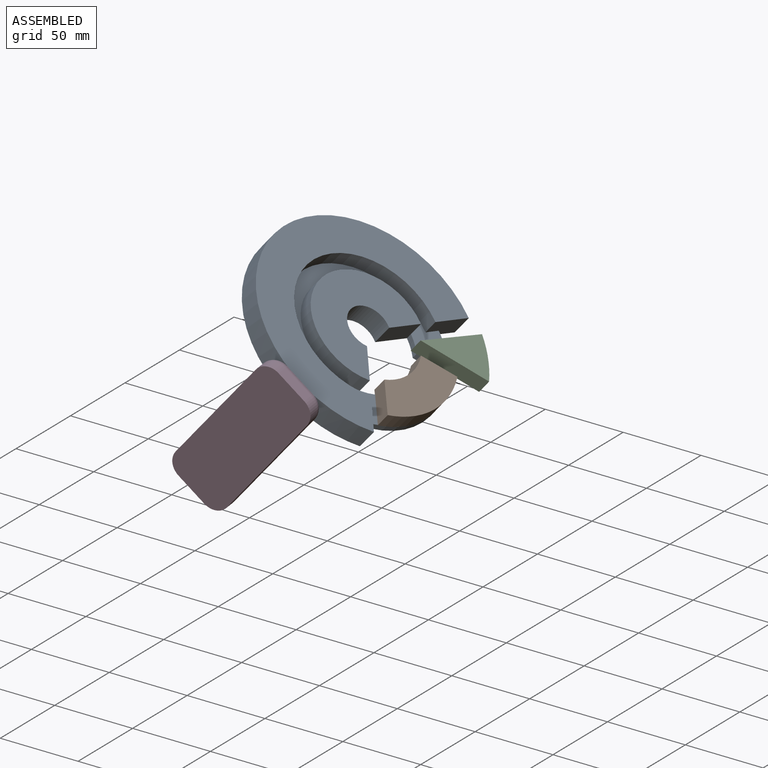
[diagram: assembled view]
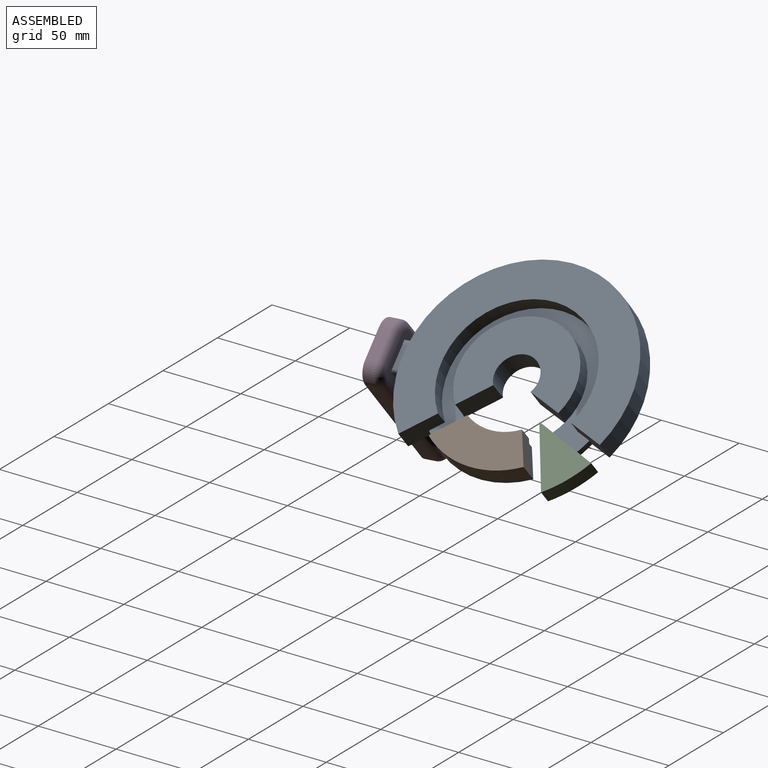
[diagram: assembled view, second angle]
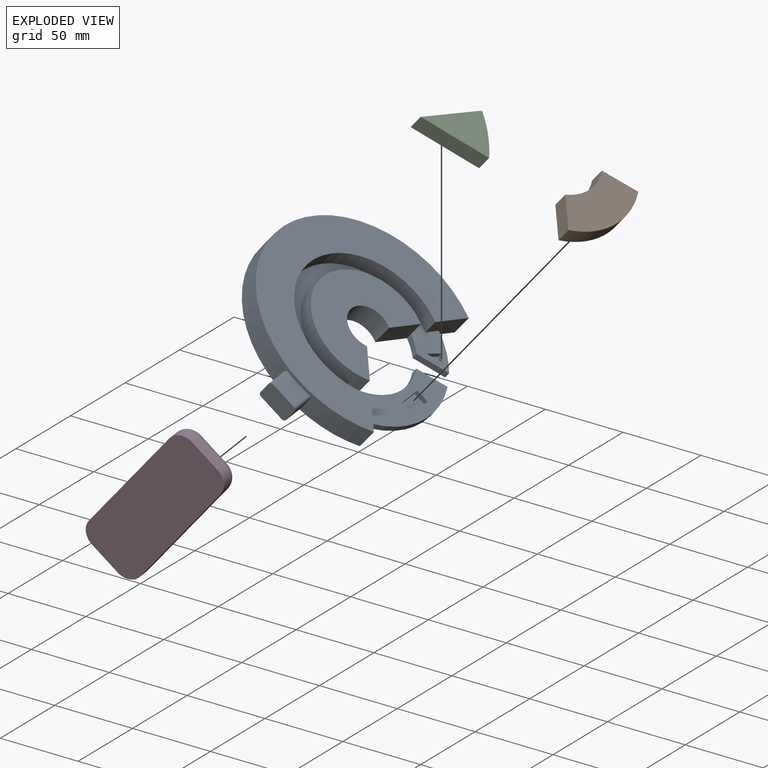
[diagram: exploded view]
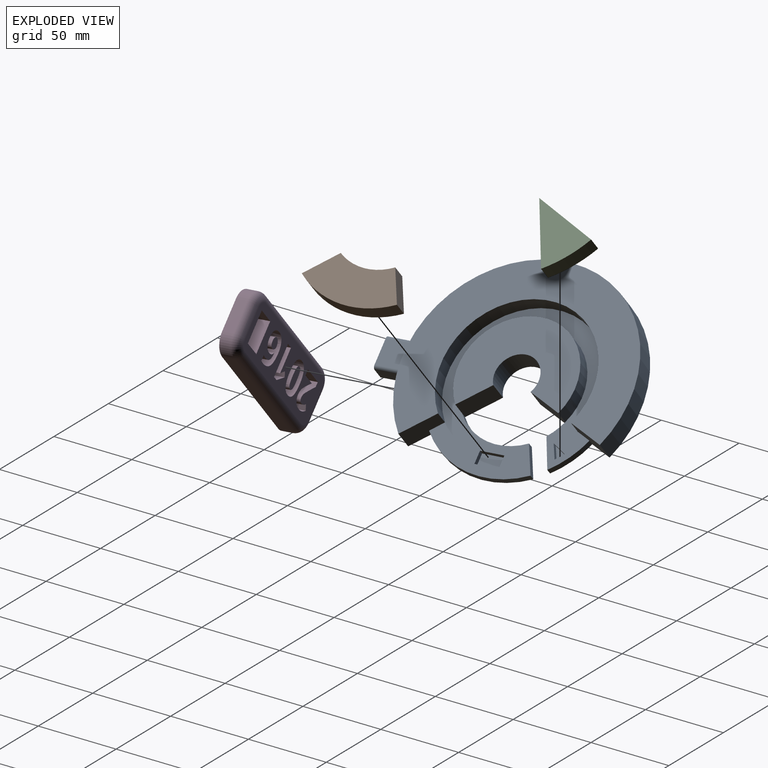
[diagram: exploded view, second angle]
ASSEMBLY  parts=4 mates=3
PART A: 35 faces, bbox 125.9x155x14 mm
  f0: plane 102.2x96.97mm, normal (0,0,1), area 3302.4mm2, adj f2,f3,f4,f5,f9,f10,f11,f12
  f1: cylinder r=70mm len=140mm, axis (0,0,1), area 3946.5mm2, adj f2,f12,f13,f15,f27,f29,f30,f31
  f2: plane 17.66x15.78mm, normal (0.75,0.67,0), area 293.4mm2, adj f0,f1,f3,f13,f14,f15
  f3: cylinder r=55.86mm len=68.53mm, axis (0,0,1), area 302.5mm2, adj f0,f2,f4,f13
  f4: plane 17.89x8.56mm, normal (-0.43,0.9,0), area 79.3mm2, adj f0,f3,f5,f13
  f5: cylinder r=36.04mm len=45.17mm, axis (0,0,1), area 200.3mm2, adj f0,f4,f6,f13
  f6: plane 16.9x15.1mm, normal (0.75,0.67,0), area 317.2mm2, adj f5,f7,f13,f16,f17
  f7: cylinder r=13.49mm len=26.98mm, axis (0,0,1), area 803mm2, adj f6,f8,f13,f17
  f8: plane 20.83x14mm, normal (0.92,-0.39,0), area 316.9mm2, adj f7,f9,f13,f16,f17
  f9: cylinder r=36.04mm len=10.05mm, axis (0,0,1), area 49.9mm2, adj f0,f8,f10,f13
  f10: plane 18.73x8.54mm, normal (0.41,-0.91,0), area 82.3mm2, adj f0,f9,f11,f13
  f11: cylinder r=55.86mm len=21.01mm, axis (0,0,1), area 109.2mm2, adj f0,f10,f12,f13
  f12: plane 21.78x14mm, normal (0.92,-0.39,0), area 293.3mm2, adj f0,f1,f11,f13,f14,f15
  f13: plane 155x125.86mm, normal (0,0,-1), area 11947.8mm2, adj f1,f2,f3,f4,f5,f6,f7,f8
  f14: cylinder r=46.34mm len=92.68mm, axis (0,0,-1), area 1977.4mm2, adj f0,f2,f12,f15
  f15: plane 140x115mm, normal (0,0,1), area 5874.5mm2, adj f1,f2,f12,f14
  f16: cylinder r=36.04mm len=72.08mm, axis (0,0,-1), area 1537.2mm2, adj f0,f6,f8,f17
  f17: plane 72.08x58.39mm, normal (0,0,1), area 2379.9mm2, adj f6,f7,f8,f16
  f18: plane 8.75x4.85mm, normal (0.87,-0.48,0), area 30mm2, adj f0,f19,f20,f21
  f19: plane 8.98x4.4mm, normal (-0.44,0.9,0), area 30mm2, adj f0,f18,f20,f21
  f20: plane 4.35x4.13mm, normal (-0.72,-0.69,0), area 18mm2, adj f0,f18,f19,f21
  f21: plane 8.98x8.75mm, normal (0,0,1), area 28.6mm2, adj f18,f19,f20
  f22: plane 15x3mm, normal (-1,0,0), area 45mm2, adj f0,f23,f25,f26
  f23: plane 8x3mm, normal (0,-1,0), area 24mm2, adj f0,f22,f24,f26
  f24: plane 15x3mm, normal (1,0,0), area 45mm2, adj f0,f23,f25,f26
  f25: plane 8x3mm, normal (0,1,0), area 24mm2, adj f0,f22,f24,f26
  f26: plane 15x8mm, normal (0,0,1), area 120mm2, adj f22,f23,f24,f25
  f27: plane 15.72x8mm, normal (-1,0,0), area 125.7mm2, adj f1,f28,f31,f34
  f28: plane 20x12mm, normal (0,-1,0), area 236.6mm2, adj f13,f27,f29,f30,f31,f32,f33,f34
  f29: plane 15.72x8mm, normal (1,0,0), area 125.7mm2, adj f1,f28,f32,f33
  f30: plane 16x15.46mm, normal (0,0,1), area 242.4mm2, adj f1,f28,f31,f32
  f31: cylinder r=2mm len=15.72mm, axis (0,-1,0), area 49.1mm2, adj f1,f27,f28,f30
  f32: cylinder r=2mm len=15.72mm, axis (0,1,0), area 49.1mm2, adj f1,f28,f29,f30
  f33: cylinder r=2mm len=15.72mm, axis (0,-1,0), area 49.1mm2, adj f1,f13,f28,f29
  f34: cylinder r=2mm len=15.72mm, axis (0,1,0), area 49.1mm2, adj f1,f13,f27,f28
PART B: 15 faces, bbox 29.1x61.7x12.8 mm
  f0: plane 20.8x10mm, normal (-0.43,0.9,0), area 230.6mm2, adj f1,f3,f4,f5
  f1: cylinder r=32.82mm len=34.46mm, axis (0,0,-1), area 363.6mm2, adj f0,f2,f4,f5
  f2: plane 17.27x15.74mm, normal (-0.74,-0.67,0), area 233.6mm2, adj f1,f3,f4,f5
  f3: cylinder r=55.86mm len=61.68mm, axis (0,0,-1), area 658.5mm2, adj f0,f2,f4,f5
  f4: plane 61.68x29.07mm, normal (0,0,1), area 1177.6mm2, adj f0,f1,f2,f3
  f5: plane 61.68x29.07mm, normal (0,0,-1), area 1058.5mm2, adj f0,f1,f2,f3,f6,f7,f8,f9
  f6: plane 13x2.8mm, normal (1,0,0), area 36.4mm2, adj f5,f10,f11,f14
  f7: plane 6x2.8mm, normal (0,1,0), area 16.8mm2, adj f5,f10,f11,f12
  f8: plane 13x2.8mm, normal (-1,0,0), area 36.4mm2, adj f5,f10,f12,f13
  f9: plane 6x2.8mm, normal (0,-1,0), area 16.8mm2, adj f5,f10,f13,f14
  f10: plane 15x8mm, normal (0,0,-1), area 119.1mm2, adj f6,f7,f8,f9,f11,f12,f13,f14
  f11: cylinder r=1mm len=2.8mm, axis (0,0,1), area 4.4mm2, adj f5,f6,f7,f10
  f12: cylinder r=1mm len=2.8mm, axis (0,0,1), area 4.4mm2, adj f5,f7,f8,f10
  f13: cylinder r=1mm len=2.8mm, axis (0,0,1), area 4.4mm2, adj f5,f8,f9,f10
  f14: cylinder r=1mm len=2.8mm, axis (0,0,1), area 4.4mm2, adj f5,f6,f9,f10
PART C: 12 faces, bbox 39.5x39.5x12.8 mm
  f0: plane 39.5x17.62mm, normal (-0.91,0.41,0), area 432.5mm2, adj f1,f2,f3,f4
  f1: plane 39.54x18.03mm, normal (0.41,-0.91,0), area 434.6mm2, adj f0,f2,f3,f4
  f2: cylinder r=74.95mm len=21.92mm, axis (0,0,-1), area 309mm2, adj f0,f1,f3,f4
  f3: plane 39.54x39.5mm, normal (0,0,1), area 654.6mm2, adj f0,f1,f2
  f4: plane 39.54x39.5mm, normal (0,0,-1), area 628.7mm2, adj f0,f1,f2,f5,f6,f7,f9,f10
  f5: plane 4.77x2.8mm, normal (-0.87,0.48,0), area 15.3mm2, adj f4,f8,f9,f11
  f6: plane 4.9x2.8mm, normal (0.44,-0.9,0), area 15.3mm2, adj f4,f8,f9,f10
  f7: plane 2.8x2.37mm, normal (0.72,0.69,0), area 9.2mm2, adj f4,f8,f10,f11
  f8: plane 6.9x6.77mm, normal (0,0,-1), area 25.9mm2, adj f5,f6,f7,f9,f10,f11
  f9: cylinder r=1mm len=2.8mm, axis (0,0,1), area 7.1mm2, adj f4,f5,f6,f8
  f10: cylinder r=1mm len=2.8mm, axis (0,0,-1), area 5.3mm2, adj f4,f6,f7,f8
  f11: cylinder r=1mm len=2.8mm, axis (0,0,-1), area 5.3mm2, adj f4,f5,f7,f8
PART D: 104 faces, bbox 101.6x41.6x12 mm
  f0: plane 90x30mm, normal (0,0,1), area 1743.1mm2, adj f4,f5,f6,f7,f15,f16,f17,f18
  f1: plane 20x7mm, normal (1,0,0), area 140mm2, adj f9,f11,f14,f18
  f2: plane 80x7mm, normal (0,1,0), area 560mm2, adj f9,f11,f12,f15
  f3: plane 20x7mm, normal (-1,0,0), area 140mm2, adj f9,f12,f13,f19
  f4: plane 20x11mm, normal (-1,0,0), area 220mm2, adj f0,f5,f7,f10
  f5: plane 12x11mm, normal (0,1,0), area 132mm2, adj f0,f4,f6,f10
  f6: plane 20x11mm, normal (1,0,0), area 220mm2, adj f0,f5,f7,f10
  f7: plane 12x11mm, normal (0,-1,0), area 132mm2, adj f0,f4,f6,f10
  f8: plane 80x7mm, normal (0,-1,0), area 560mm2, adj f9,f13,f14,f22
  f9: plane 100x40mm, normal (0,0,-1), area 3914.2mm2, adj f1,f2,f3,f8,f11,f12,f13,f14
  f10: plane 20x12mm, normal (0,0,1), area 240mm2, adj f4,f5,f6,f7
  f11: cylinder r=10mm len=10mm, axis (0,0,-1), area 110mm2, adj f1,f2,f9,f16
  f12: cylinder r=10mm len=10mm, axis (0,0,1), area 110mm2, adj f2,f3,f9,f17
  f13: cylinder r=10mm len=10mm, axis (0,0,-1), area 110mm2, adj f3,f8,f9,f21
  f14: cylinder r=10mm len=10mm, axis (0,0,1), area 110mm2, adj f1,f8,f9,f20
  f15: cylinder r=5mm len=80mm, axis (1,0,0), area 628.3mm2, adj f0,f2,f16,f17
  f16: torus R=5mm, axis (0,0,1), area 101mm2, adj f0,f11,f15,f18
  f17: torus R=5mm, axis (0,0,1), area 101mm2, adj f0,f12,f15,f19
  f18: cylinder r=5mm len=20mm, axis (0,-1,0), area 157.1mm2, adj f0,f1,f16,f20
  f19: cylinder r=5mm len=20mm, axis (0,1,0), area 157.1mm2, adj f0,f3,f17,f21
  f20: torus R=5mm, axis (0,0,1), area 101mm2, adj f0,f14,f18,f22
  f21: torus R=5mm, axis (0,0,1), area 101mm2, adj f0,f13,f19,f22
  f22: cylinder r=5mm len=80mm, axis (-1,0,0), area 628.3mm2, adj f0,f8,f20,f21
  f23: extruded ~10x4.75mm, area 48.7mm2, adj f0,f24,f47,f48
  f24: extruded ~10x3mm, area 39.9mm2, adj f0,f23,f25,f48
  f25: extruded ~10x3.87mm, area 40.6mm2, adj f0,f24,f26,f48
  f26: extruded ~10x5.01mm, area 55mm2, adj f0,f25,f27,f48
  f27: extruded ~10x5.07mm, area 55.3mm2, adj f0,f26,f28,f48
  f28: extruded ~10x4.65mm, area 50.1mm2, adj f0,f27,f29,f48
  f29: extruded ~10x4.2mm, area 46.7mm2, adj f0,f28,f30,f48
  f30: extruded ~10x4.34mm, area 51.8mm2, adj f0,f29,f31,f48
  f31: plane 10x0.18mm, normal (0,-1,0), area 1.8mm2, adj f0,f30,f32,f48
  f32: extruded ~10x3.65mm, area 37.7mm2, adj f0,f31,f33,f48
  f33: extruded ~10x2.06mm, area 28.8mm2, adj f0,f32,f34,f48
  f34: extruded ~10x3.55mm, area 36.4mm2, adj f0,f33,f35,f48
  f35: extruded ~10x2.41mm, area 24.3mm2, adj f0,f34,f36,f48
  f36: plane 10x3.38mm, normal (-1,0,0), area 33.8mm2, adj f0,f35,f37,f48
  f37: extruded ~10x2.68mm, area 26.9mm2, adj f0,f36,f38,f48
  f38: extruded ~10x7.52mm, area 83.3mm2, adj f0,f37,f47,f48
  f39: extruded ~10x2.17mm, area 25.4mm2, adj f40,f46,f48,f49
  f40: extruded ~10x2.75mm, area 29.4mm2, adj f39,f41,f48,f49
  f41: extruded ~10x1.94mm, area 22.1mm2, adj f40,f42,f48,f49
  f42: extruded ~10x2.2mm, area 24.1mm2, adj f41,f43,f48,f49
  f43: extruded ~10x2.05mm, area 22.9mm2, adj f42,f44,f48,f49
  f44: extruded ~10x2.31mm, area 24.5mm2, adj f43,f45,f48,f49
  f45: extruded ~10x2.59mm, area 27.4mm2, adj f44,f46,f48,f49
  f46: extruded ~10x2.08mm, area 23.6mm2, adj f39,f45,f48,f49
  f47: extruded ~10x8.84mm, area 93.9mm2, adj f0,f23,f38,f48
  f48: plane 20.52x14.13mm, normal (0,0,1), area 170.7mm2, adj f23,f24,f25,f26,f27,f28,f29,f30
  f49: plane 6.65x5.84mm, normal (0,0,1), area 31.3mm2, adj f39,f40,f41,f42,f43,f44,f45,f46
  f50: extruded ~10x7.7mm, area 80.1mm2, adj f0,f51,f65,f66
  f51: extruded ~10x5.24mm, area 61.2mm2, adj f0,f50,f52,f66
  f52: extruded ~10x5.27mm, area 61mm2, adj f0,f51,f53,f66
  f53: extruded ~10x7.81mm, area 81.1mm2, adj f0,f52,f54,f66
  f54: extruded ~10x7.68mm, area 79.9mm2, adj f0,f53,f55,f66
  f55: extruded ~10x5.22mm, area 61mm2, adj f0,f54,f56,f66
  f56: extruded ~10x5.29mm, area 61.2mm2, adj f0,f55,f65,f66
  f57: extruded ~10x5.29mm, area 53.6mm2, adj f58,f64,f66,f67
  f58: extruded ~10x2.14mm, area 28.6mm2, adj f57,f59,f66,f67
  f59: extruded ~10x2.13mm, area 28.5mm2, adj f58,f60,f66,f67
  f60: extruded ~10x5.29mm, area 53.6mm2, adj f59,f61,f66,f67
  f61: extruded ~10x5.25mm, area 53.2mm2, adj f60,f62,f66,f67
  f62: extruded ~10x2.14mm, area 28.7mm2, adj f61,f63,f66,f67
  f63: extruded ~10x2.14mm, area 28.6mm2, adj f62,f64,f66,f67
  f64: extruded ~10x5.27mm, area 53.4mm2, adj f57,f63,f66,f67
  f65: extruded ~10x7.76mm, area 80.6mm2, adj f0,f50,f56,f66
  f66: plane 20.61x13.99mm, normal (0,0,1), area 175.4mm2, adj f50,f51,f52,f53,f54,f55,f56,f57
  f67: plane 13.77x5.57mm, normal (0,0,1), area 65.2mm2, adj f57,f58,f59,f60,f61,f62,f63,f64
  f68: plane 20.02x10mm, normal (-1,0,0), area 200.2mm2, adj f0,f69,f77,f78
  f69: plane 10x3.48mm, normal (0,-1,0), area 34.8mm2, adj f0,f68,f70,f78
  f70: plane 10x6.45mm, normal (0.62,-0.78,0), area 82.4mm2, adj f0,f69,f71,f78
  f71: plane 10x2.55mm, normal (0.78,0.63,0), area 32.6mm2, adj f0,f70,f72,f78
  f72: plane 10x2.3mm, normal (-0.63,0.78,0), area 29.5mm2, adj f0,f71,f73,f78
  f73: extruded ~10x1.46mm, area 20.1mm2, adj f0,f72,f74,f78
  f74: plane 10x2.08mm, normal (1,-0.03,0), area 20.8mm2, adj f0,f73,f75,f78
  f75: plane 10x1.9mm, normal (1,-0.02,0), area 19mm2, adj f0,f74,f76,f78
  f76: plane 11.58x10mm, normal (1,0,0), area 115.8mm2, adj f0,f75,f77,f78
  f77: plane 10x4.23mm, normal (0,1,0), area 42.3mm2, adj f0,f68,f76,f78
  f78: plane 20.02x9.93mm, normal (0,0,1), area 103.6mm2, adj f68,f69,f70,f71,f72,f73,f74,f75
  f79: plane 10x3.56mm, normal (-1,0,0), area 35.6mm2, adj f0,f80,f102,f103
  f80: plane 10x8.72mm, normal (0,-1,0), area 87.2mm2, adj f0,f79,f81,f103
  f81: plane 10x0.19mm, normal (-1,0,0), area 1.9mm2, adj f0,f80,f82,f103
  f82: plane 10x2.58mm, normal (-0.69,0.73,0), area 35.4mm2, adj f0,f81,f83,f103
  f83: extruded ~10x3.63mm, area 51.1mm2, adj f0,f82,f84,f103
  f84: extruded ~10x2.48mm, area 29.2mm2, adj f0,f83,f85,f103
  f85: extruded ~10x2.6mm, area 26.6mm2, adj f0,f84,f86,f103
  f86: extruded ~10x2.82mm, area 29.7mm2, adj f0,f85,f87,f103
  f87: extruded ~10x2.23mm, area 29.8mm2, adj f0,f86,f88,f103
  f88: extruded ~10x3.31mm, area 34.1mm2, adj f0,f87,f89,f103
  f89: extruded ~10x2.57mm, area 26mm2, adj f0,f88,f90,f103
  f90: extruded ~10x2.12mm, area 22.7mm2, adj f0,f89,f91,f103
  f91: extruded ~10x2.45mm, area 30.3mm2, adj f0,f90,f92,f103
  f92: plane 10x2.73mm, normal (0.76,0.65,0), area 35.7mm2, adj f0,f91,f93,f103
  f93: extruded ~10x2.29mm, area 27.5mm2, adj f0,f92,f94,f103
  f94: extruded ~10x2.26mm, area 23.4mm2, adj f0,f93,f95,f103
  f95: extruded ~10x1.77mm, area 19.1mm2, adj f0,f94,f96,f103
  f96: extruded ~10x1.79mm, area 19.7mm2, adj f0,f95,f97,f103
  f97: extruded ~10x1.56mm, area 16mm2, adj f0,f96,f98,f103
  f98: extruded ~10x1.64mm, area 19.2mm2, adj f0,f97,f99,f103
  f99: extruded ~10x3.17mm, area 43.1mm2, adj f0,f98,f100,f103
  f100: plane 10x5.08mm, normal (0.71,-0.7,0), area 71.4mm2, adj f0,f99,f101,f103
  f101: plane 10x2.94mm, normal (1,0,0), area 29.4mm2, adj f0,f100,f102,f103
  f102: plane 13.99x10mm, normal (0,1,0), area 139.9mm2, adj f0,f79,f101,f103
  f103: plane 20.3x14.04mm, normal (0,0,1), area 149.2mm2, adj f79,f80,f81,f82,f83,f84,f85,f86
PLACE A rot(axis=(0.04,0.99,0.12),40.3deg) t=(112.78,60.75,0.88)mm
PLACE B rot(axis=(0.04,0.99,0.12),40.3deg) t=(112.65,60.75,0.73)mm
PLACE C rot(axis=(0.04,0.99,0.12),40.3deg) t=(112.52,60.56,0.84)mm
PLACE D rot(axis=(-0.82,-0.42,-0.38),96.1deg) t=(97.31,-24.92,-29.22)mm
MATE fastened B.f10 <-> A.f26  axis (-0.64,0,-0.77) through (145.51,62.96,-30.5)mm
MATE fastened C.f8 <-> A.f21  axis (-0.64,0,-0.77) through (134.15,98.81,-20.96)mm
MATE fastened A.f28 <-> D.f10  axis (0.07,-1,-0.06) through (119.74,-23.93,-2.35)mm
